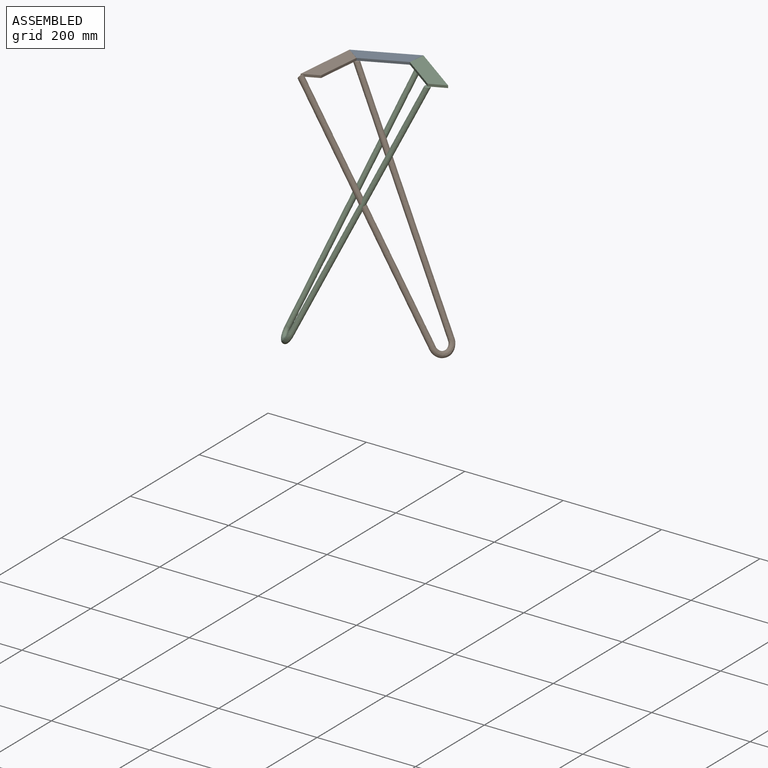
[diagram: assembled view]
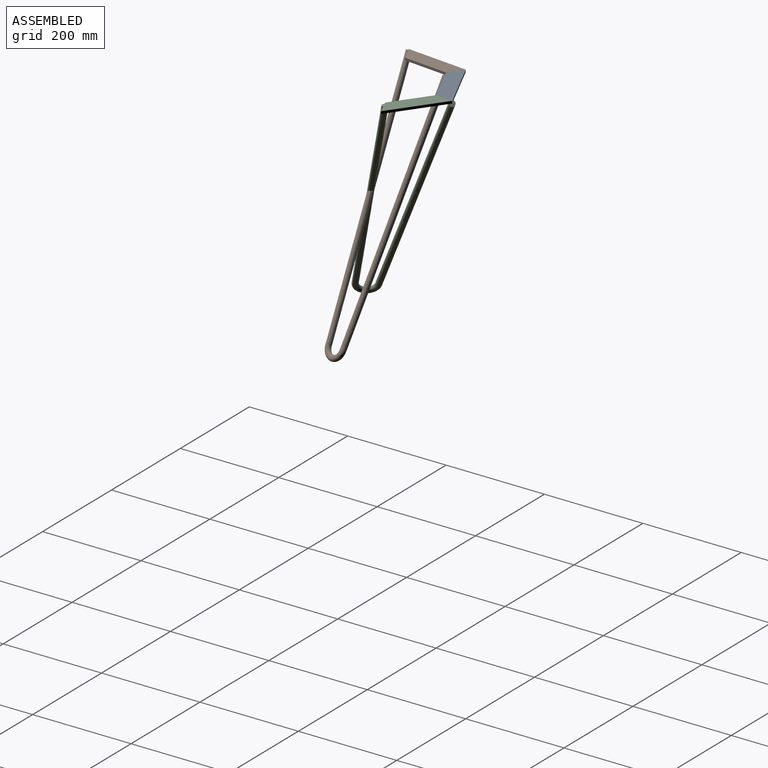
[diagram: assembled view, second angle]
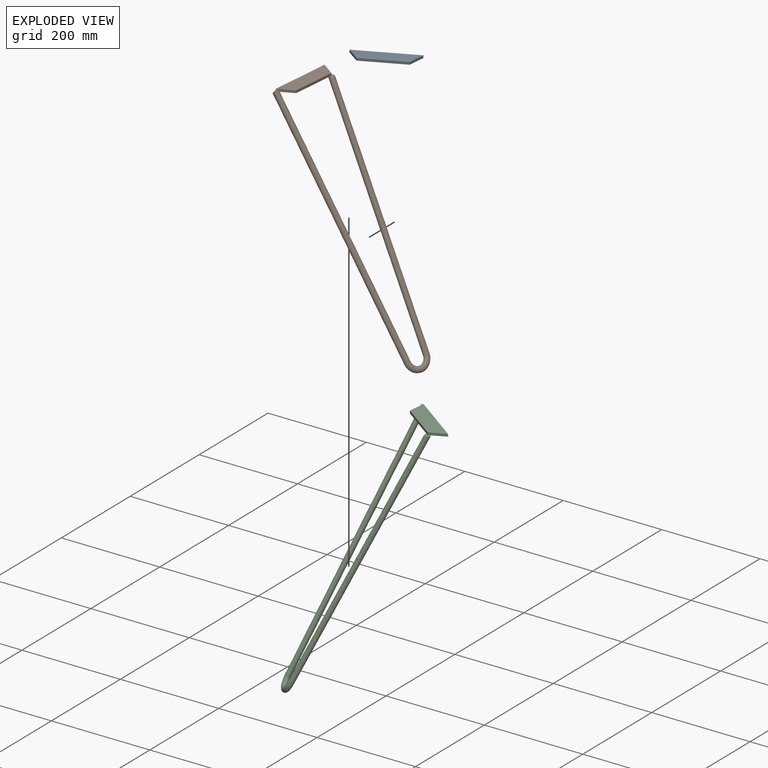
[diagram: exploded view]
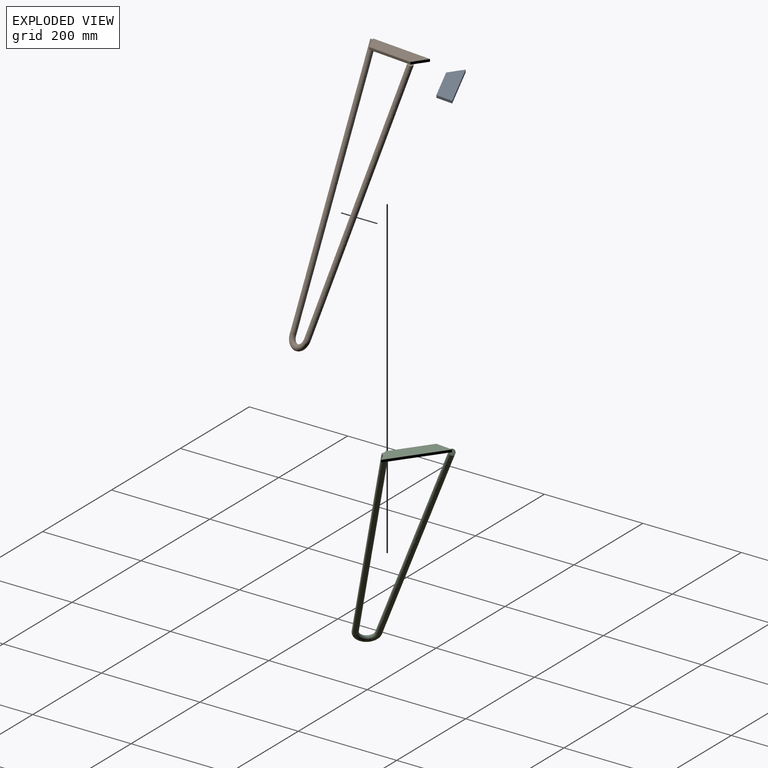
[diagram: exploded view, second angle]
ASSEMBLY  parts=3 mates=2
PART A: 6 faces, bbox 40.9x124.3x5 mm
  f0: plane 28.06x20.31mm, normal (0.59,0.81,0), area 173.2mm2, adj f1,f3,f4,f5
  f1: plane 124.34x12.83mm, normal (-0.99,0.1,0), area 625mm2, adj f0,f2,f4,f5
  f2: plane 31.62x14.15mm, normal (0.41,-0.91,0), area 173.2mm2, adj f1,f3,f4,f5
  f3: plane 89.88x9.28mm, normal (0.99,-0.1,0), area 451.8mm2, adj f0,f2,f4,f5
  f4: plane 124.34x40.9mm, normal (0,0,1), area 3230.4mm2, adj f0,f1,f2,f3
  f5: plane 124.34x40.9mm, normal (0,0,-1), area 3230.4mm2, adj f0,f1,f2,f3
PART B: 13 faces, bbox 225.5x273.6x464.4 mm
  f0: plane 34.49x5.03mm, normal (-0.99,0.1,0), area 158.1mm2, adj f1,f2,f4,f5,f6,f8
  f1: plane 106.22x86.38mm, normal (0,0,-1), area 3174.2mm2, adj f0,f2,f3,f4,f6,f8,f12
  f2: plane 73.2x52.97mm, normal (-0.59,-0.81,0), area 451.8mm2, adj f0,f1,f3,f5,f7
  f3: plane 31.62x14.15mm, normal (0.41,-0.91,0), area 173.2mm2, adj f1,f2,f4,f5,f7
  f4: plane 101.26x73.28mm, normal (0.59,0.81,0), area 625mm2, adj f0,f1,f3,f5
  f5: plane 104.82x87.43mm, normal (0,0,1), area 3230.4mm2, adj f0,f2,f3,f4
  f6: plane 13.17x13.01mm, normal (0.57,0.61,0.55), area 91.9mm2, adj f0,f1,f8
  f7: plane 12x9.52mm, normal (0,0,1), area 75.4mm2, adj f2,f3,f12
  f8: bspline ~446.03x238.66mm, area 17839.7mm2, adj f0,f1,f6,f10,f11
  f9: bspline ~11.32x11.04mm, area 25.3mm2, adj f11,f12
  f10: bspline ~11.01x8.91mm, area 25.6mm2, adj f8,f11
  f11: bspline ~42.02x39.35mm, area 2206.7mm2, adj f8,f9,f10,f12
  f12: bspline ~431.26x182.9mm, area 17367.2mm2, adj f1,f7,f9,f11
PART C: same geometry as B
PLACE A rot(axis=(0,0,-1),59.5deg) t=(-41.88,27.16,0)mm
PLACE B rot(axis=(0,0,1),120.3deg) t=(-42.14,26.79,0)mm
PLACE C t=(-42.71,27.24,0)mm
MATE revolute B.f5 <-> A.f4  axis (0,0,1) through (-143.81,99.5,5)mm
MATE revolute A.f4 <-> C.f5  axis (0,0,1) through (-33.43,117.12,5)mm
